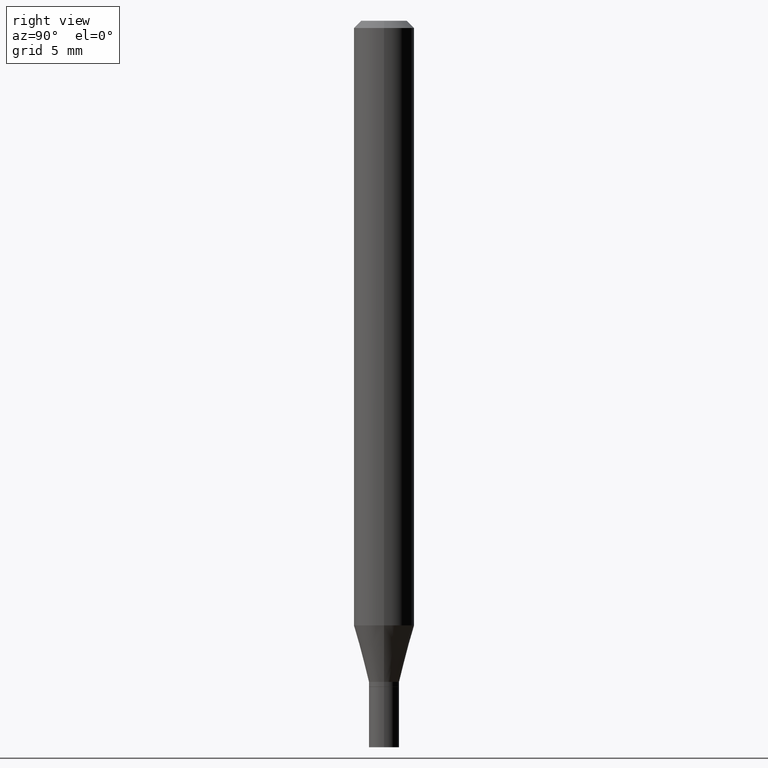
[diagram: clean part render]
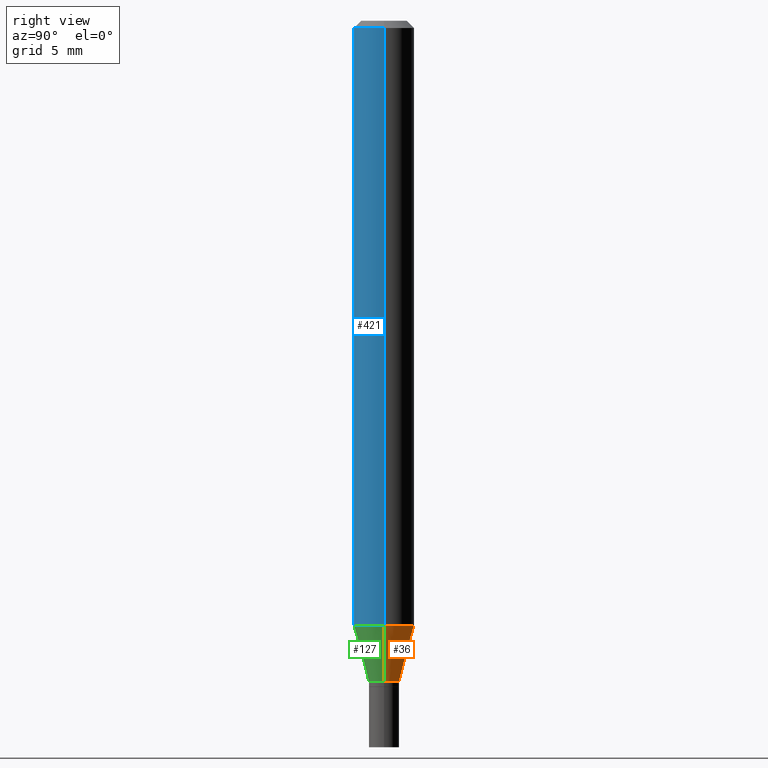
[diagram: same view with three faces highlighted in distinct colors, each labeled with its STEP entity id]
A machine part, right view with three faces highlighted in distinct colors.
Their STEP definitions:

[orange] entity #36 — the highlighted conical surface has half-angle 15 deg.
#16 = VECTOR ( 'NONE', #235, 39.37007874015748143 ) ;
#34 = DIRECTION ( 'NONE',  ( 1.000000000000000000, -6.982962677686274599E-15, 0.000000000000000000 ) ) ;
#36 = ADVANCED_FACE ( 'NONE', ( #74 ), #198, .T. ) ;
#49 = LINE ( 'NONE', #344, #16 ) ;
#55 = VERTEX_POINT ( 'NONE', #173 ) ;
#74 = FACE_OUTER_BOUND ( 'NONE', #291, .T. ) ;
#92 = EDGE_CURVE ( 'NONE', #180, #246, #49, .T. ) ;
#96 = DIRECTION ( 'NONE',  ( 1.000000000000000000, -6.982962677686274599E-15, 0.000000000000000000 ) ) ;
#99 = DIRECTION ( 'NONE',  ( -2.445468806185136597E-29, 3.491481338843145583E-15, 1.000000000000000000 ) ) ;
#110 = CARTESIAN_POINT ( 'NONE',  ( -0.06250000000000000000, -3.914583262975789231E-15, -1.248373412263471760 ) ) ;
#124 = DIRECTION ( 'NONE',  ( -0.2588190451025215166, 5.211531920934551042E-15, 0.9659258262890679791 ) ) ;
#126 = LINE ( 'NONE', #272, #316 ) ;
#132 = CARTESIAN_POINT ( 'NONE',  ( 3.052858238161217332E-29, -4.358672472825852637E-15, -1.248373412263471760 ) ) ;
#155 = CARTESIAN_POINT ( 'NONE',  ( 0.06250000000000000000, -4.795107640181243517E-15, -1.248373412263471760 ) ) ;
#164 = AXIS2_PLACEMENT_3D ( 'NONE', #132, #99, #247 ) ;
#165 = VERTEX_POINT ( 'NONE', #110 ) ;
#173 = CARTESIAN_POINT ( 'NONE',  ( -0.03124999999999966693, -4.229205342785826785E-15, -1.364999999999999991 ) ) ;
#180 = VERTEX_POINT ( 'NONE', #221 ) ;
#187 = CIRCLE ( 'NONE', #416, 0.03124999999999966693 ) ;
#198 = CONICAL_SURFACE ( 'NONE', #225, 0.03124999999999966693, 0.2617993877991502405 ) ;
#214 = ORIENTED_EDGE ( 'NONE', *, *, #430, .F. ) ;
#221 = CARTESIAN_POINT ( 'NONE',  ( 0.03124999999999966693, -4.984089611198587537E-15, -1.364999999999999991 ) ) ;
#225 = AXIS2_PLACEMENT_3D ( 'NONE', #357, #456, #34 ) ;
#235 = DIRECTION ( 'NONE',  ( 0.2588190451025215166, 1.565188264969620784E-15, 0.9659258262890679791 ) ) ;
#246 = VERTEX_POINT ( 'NONE', #155 ) ;
#247 = DIRECTION ( 'NONE',  ( 1.000000000000000000, -6.982962677686270655E-15, 0.000000000000000000 ) ) ;
#272 = CARTESIAN_POINT ( 'NONE',  ( -0.03124999999999966693, -4.543827422595864339E-15, -1.364999999999999991 ) ) ;
#291 = EDGE_LOOP ( 'NONE', ( #458, #300, #214, #343 ) ) ;
#300 = ORIENTED_EDGE ( 'NONE', *, *, #327, .T. ) ;
#316 = VECTOR ( 'NONE', #124, 39.37007874015748143 ) ;
#319 = EDGE_CURVE ( 'NONE', #180, #55, #187, .T. ) ;
#327 = EDGE_CURVE ( 'NONE', #55, #165, #126, .T. ) ;
#342 = DIRECTION ( 'NONE',  ( -2.445468806185136597E-29, 3.491481338843145583E-15, 1.000000000000000000 ) ) ;
#343 = ORIENTED_EDGE ( 'NONE', *, *, #92, .F. ) ;
#344 = CARTESIAN_POINT ( 'NONE',  ( 0.03124999999999966693, -4.984089611198587537E-15, -1.364999999999999991 ) ) ;
#357 = CARTESIAN_POINT ( 'NONE',  ( 3.338064920442711836E-29, -4.765872027520893280E-15, -1.364999999999999991 ) ) ;
#382 = CIRCLE ( 'NONE', #164, 0.06250000000000000000 ) ;
#416 = AXIS2_PLACEMENT_3D ( 'NONE', #449, #342, #96 ) ;
#430 = EDGE_CURVE ( 'NONE', #246, #165, #382, .T. ) ;
#449 = CARTESIAN_POINT ( 'NONE',  ( 3.338064920442711836E-29, -4.765872027520893280E-15, -1.364999999999999991 ) ) ;
#456 = DIRECTION ( 'NONE',  ( -2.445468806185136597E-29, 3.491481338843145583E-15, 1.000000000000000000 ) ) ;
#458 = ORIENTED_EDGE ( 'NONE', *, *, #319, .T. ) ;

[blue] entity #421 — the highlighted cylindrical surface (edge-blend (fillet) strip) has radius 1.5875 mm, axis along (-0, 0, 1).
#15 = ORIENTED_EDGE ( 'NONE', *, *, #227, .F. ) ;
#20 = DIRECTION ( 'NONE',  ( -2.445468806185136597E-29, 3.491481338843145583E-15, 1.000000000000000000 ) ) ;
#24 = AXIS2_PLACEMENT_3D ( 'NONE', #370, #373, #434 ) ;
#27 = DIRECTION ( 'NONE',  ( 1.000000000000000000, -6.982962677686270655E-15, 0.000000000000000000 ) ) ;
#35 = DIRECTION ( 'NONE',  ( -2.445468806185136597E-29, 3.491481338843145583E-15, 1.000000000000000000 ) ) ;
#50 = CARTESIAN_POINT ( 'NONE',  ( -0.06250000000000000000, -1.761433136604187439E-15, -0.01499999999999999944 ) ) ;
#83 = VECTOR ( 'NONE', #296, 39.37007874015748143 ) ;
#87 = DIRECTION ( 'NONE',  ( -2.445468806185136877E-29, 3.491481338843145188E-15, 1.000000000000000000 ) ) ;
#102 = CIRCLE ( 'NONE', #24, 0.06250000000000000000 ) ;
#110 = CARTESIAN_POINT ( 'NONE',  ( -0.06250000000000000000, -3.914583262975789231E-15, -1.248373412263471760 ) ) ;
#117 = AXIS2_PLACEMENT_3D ( 'NONE', #345, #20, #129 ) ;
#129 = DIRECTION ( 'NONE',  ( 1.000000000000000000, -6.982962677686266711E-15, 4.876176775795935793E-29 ) ) ;
#146 = VECTOR ( 'NONE', #87, 39.37007874015748143 ) ;
#148 = AXIS2_PLACEMENT_3D ( 'NONE', #170, #35, #27 ) ;
#155 = CARTESIAN_POINT ( 'NONE',  ( 0.06250000000000000000, -4.795107640181243517E-15, -1.248373412263471760 ) ) ;
#160 = LINE ( 'NONE', #311, #146 ) ;
#165 = VERTEX_POINT ( 'NONE', #110 ) ;
#170 = CARTESIAN_POINT ( 'NONE',  ( 3.052858238161217332E-29, -4.358672472825852637E-15, -1.248373412263471760 ) ) ;
#178 = EDGE_LOOP ( 'NONE', ( #202, #286, #419, #15 ) ) ;
#202 = ORIENTED_EDGE ( 'NONE', *, *, #401, .F. ) ;
#224 = EDGE_CURVE ( 'NONE', #246, #251, #362, .T. ) ;
#227 = EDGE_CURVE ( 'NONE', #308, #251, #102, .T. ) ;
#242 = CARTESIAN_POINT ( 'NONE',  ( 0.06250000000000000000, -4.364351673553916694E-16, 3.047610484872459871E-30 ) ) ;
#246 = VERTEX_POINT ( 'NONE', #155 ) ;
#251 = VERTEX_POINT ( 'NONE', #302 ) ;
#286 = ORIENTED_EDGE ( 'NONE', *, *, #455, .T. ) ;
#296 = DIRECTION ( 'NONE',  ( -2.445468806185136877E-29, 3.491481338843145188E-15, 1.000000000000000000 ) ) ;
#302 = CARTESIAN_POINT ( 'NONE',  ( 0.06250000000000000000, -4.888073874380388472E-16, -0.01499999999999999944 ) ) ;
#308 = VERTEX_POINT ( 'NONE', #50 ) ;
#311 = CARTESIAN_POINT ( 'NONE',  ( -0.06250000000000000000, 4.440892098500626162E-16, -3.074334431409316114E-30 ) ) ;
#317 = CYLINDRICAL_SURFACE ( 'NONE', #117, 0.06250000000000000000 ) ;
#345 = CARTESIAN_POINT ( 'NONE',  ( 0.000000000000000000, 0.000000000000000000, 0.000000000000000000 ) ) ;
#362 = LINE ( 'NONE', #242, #83 ) ;
#370 = CARTESIAN_POINT ( 'NONE',  ( 3.668203209277705088E-31, -5.237222008264718399E-17, -0.01499999999999999944 ) ) ;
#373 = DIRECTION ( 'NONE',  ( -2.445468806185136597E-29, 3.491481338843145583E-15, 1.000000000000000000 ) ) ;
#378 = CIRCLE ( 'NONE', #148, 0.06250000000000000000 ) ;
#401 = EDGE_CURVE ( 'NONE', #165, #308, #160, .T. ) ;
#419 = ORIENTED_EDGE ( 'NONE', *, *, #224, .T. ) ;
#421 = ADVANCED_FACE ( 'NONE', ( #423 ), #317, .T. ) ;
#423 = FACE_OUTER_BOUND ( 'NONE', #178, .T. ) ;
#434 = DIRECTION ( 'NONE',  ( 1.000000000000000000, -6.982962677686266711E-15, 0.000000000000000000 ) ) ;
#455 = EDGE_CURVE ( 'NONE', #165, #246, #378, .T. ) ;

[green] entity #127 — the highlighted conical surface has half-angle 15 deg.
#16 = VECTOR ( 'NONE', #235, 39.37007874015748143 ) ;
#27 = DIRECTION ( 'NONE',  ( 1.000000000000000000, -6.982962677686270655E-15, 0.000000000000000000 ) ) ;
#35 = DIRECTION ( 'NONE',  ( -2.445468806185136597E-29, 3.491481338843145583E-15, 1.000000000000000000 ) ) ;
#49 = LINE ( 'NONE', #344, #16 ) ;
#55 = VERTEX_POINT ( 'NONE', #173 ) ;
#92 = EDGE_CURVE ( 'NONE', #180, #246, #49, .T. ) ;
#100 = ORIENTED_EDGE ( 'NONE', *, *, #195, .T. ) ;
#110 = CARTESIAN_POINT ( 'NONE',  ( -0.06250000000000000000, -3.914583262975789231E-15, -1.248373412263471760 ) ) ;
#122 = ORIENTED_EDGE ( 'NONE', *, *, #327, .F. ) ;
#124 = DIRECTION ( 'NONE',  ( -0.2588190451025215166, 5.211531920934551042E-15, 0.9659258262890679791 ) ) ;
#126 = LINE ( 'NONE', #272, #316 ) ;
#127 = ADVANCED_FACE ( 'NONE', ( #162 ), #459, .T. ) ;
#145 = CARTESIAN_POINT ( 'NONE',  ( 3.338064920442711836E-29, -4.765872027520893280E-15, -1.364999999999999991 ) ) ;
#148 = AXIS2_PLACEMENT_3D ( 'NONE', #170, #35, #27 ) ;
#155 = CARTESIAN_POINT ( 'NONE',  ( 0.06250000000000000000, -4.795107640181243517E-15, -1.248373412263471760 ) ) ;
#162 = FACE_OUTER_BOUND ( 'NONE', #464, .T. ) ;
#165 = VERTEX_POINT ( 'NONE', #110 ) ;
#170 = CARTESIAN_POINT ( 'NONE',  ( 3.052858238161217332E-29, -4.358672472825852637E-15, -1.248373412263471760 ) ) ;
#173 = CARTESIAN_POINT ( 'NONE',  ( -0.03124999999999966693, -4.229205342785826785E-15, -1.364999999999999991 ) ) ;
#180 = VERTEX_POINT ( 'NONE', #221 ) ;
#195 = EDGE_CURVE ( 'NONE', #55, #180, #398, .T. ) ;
#221 = CARTESIAN_POINT ( 'NONE',  ( 0.03124999999999966693, -4.984089611198587537E-15, -1.364999999999999991 ) ) ;
#235 = DIRECTION ( 'NONE',  ( 0.2588190451025215166, 1.565188264969620784E-15, 0.9659258262890679791 ) ) ;
#246 = VERTEX_POINT ( 'NONE', #155 ) ;
#262 = DIRECTION ( 'NONE',  ( -2.445468806185136597E-29, 3.491481338843145583E-15, 1.000000000000000000 ) ) ;
#272 = CARTESIAN_POINT ( 'NONE',  ( -0.03124999999999966693, -4.543827422595864339E-15, -1.364999999999999991 ) ) ;
#274 = ORIENTED_EDGE ( 'NONE', *, *, #455, .F. ) ;
#287 = DIRECTION ( 'NONE',  ( 1.000000000000000000, -6.982962677686274599E-15, 0.000000000000000000 ) ) ;
#316 = VECTOR ( 'NONE', #124, 39.37007874015748143 ) ;
#320 = CARTESIAN_POINT ( 'NONE',  ( 3.338064920442711836E-29, -4.765872027520893280E-15, -1.364999999999999991 ) ) ;
#327 = EDGE_CURVE ( 'NONE', #55, #165, #126, .T. ) ;
#344 = CARTESIAN_POINT ( 'NONE',  ( 0.03124999999999966693, -4.984089611198587537E-15, -1.364999999999999991 ) ) ;
#377 = AXIS2_PLACEMENT_3D ( 'NONE', #320, #463, #287 ) ;
#378 = CIRCLE ( 'NONE', #148, 0.06250000000000000000 ) ;
#398 = CIRCLE ( 'NONE', #403, 0.03124999999999966693 ) ;
#403 = AXIS2_PLACEMENT_3D ( 'NONE', #145, #262, #447 ) ;
#410 = ORIENTED_EDGE ( 'NONE', *, *, #92, .T. ) ;
#447 = DIRECTION ( 'NONE',  ( 1.000000000000000000, -6.982962677686274599E-15, 0.000000000000000000 ) ) ;
#455 = EDGE_CURVE ( 'NONE', #165, #246, #378, .T. ) ;
#459 = CONICAL_SURFACE ( 'NONE', #377, 0.03124999999999966693, 0.2617993877991502405 ) ;
#463 = DIRECTION ( 'NONE',  ( -2.445468806185136597E-29, 3.491481338843145583E-15, 1.000000000000000000 ) ) ;
#464 = EDGE_LOOP ( 'NONE', ( #122, #100, #410, #274 ) ) ;